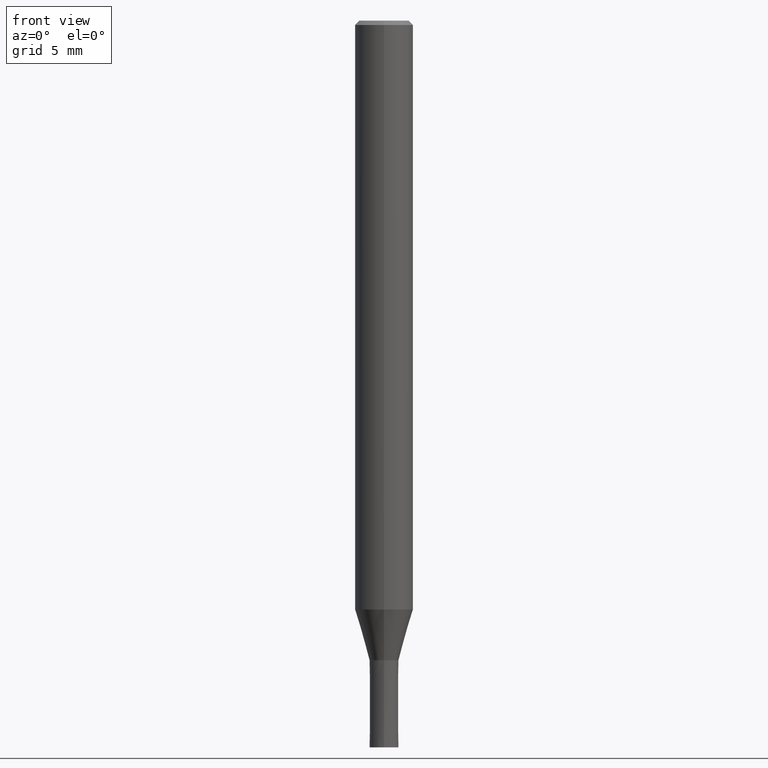
[diagram: clean part render]
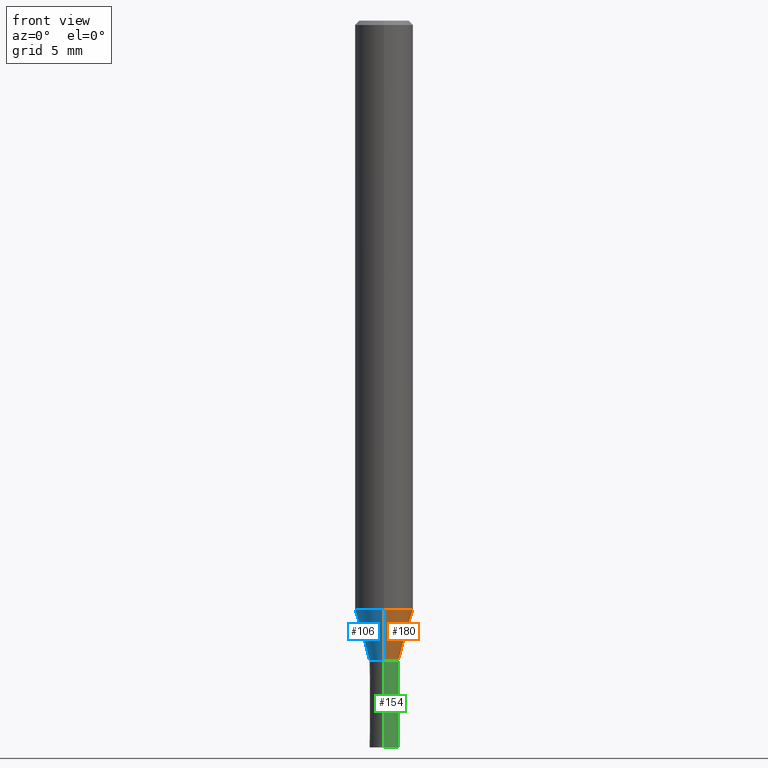
[diagram: same view with three faces highlighted in distinct colors, each labeled with its STEP entity id]
A machine part, front view with three faces highlighted in distinct colors.
Their STEP definitions:

[orange] entity #180 — the highlighted conical surface has half-angle 16.002 deg.
#114=VERTEX_POINT('',#241);
#116=VERTEX_POINT('',#243);
#124=VERTEX_POINT('',#251);
#126=EDGE_CURVE('',#144,#116,#253,.T.);
#138=EDGE_CURVE('',#114,#144,#265,.T.);
#144=VERTEX_POINT('',#271);
#160=EDGE_CURVE('',#116,#124,#290,.T.);
#162=EDGE_CURVE('',#114,#124,#292,.T.);
#180=ADVANCED_FACE('',(#313),#314,.T.);
#241=CARTESIAN_POINT('',(0.0,1.99995,-40.513));
#243=CARTESIAN_POINT('',(1.22454512350469E-016,-0.99995,-44.0));
#251=CARTESIAN_POINT('',(2.44915147732706E-016,-1.99995,-40.513));
#253=CIRCLE('',#392,0.99995);
#265=LINE('',#407,#408);
#271=CARTESIAN_POINT('',(0.0,0.99995,-44.0));
#290=LINE('',#438,#439);
#292=CIRCLE('',#442,1.99995);
#313=FACE_OUTER_BOUND('',#466,.T.);
#314=CONICAL_SURFACE('',#467,1.49995,0.279284171542493);
#392=AXIS2_PLACEMENT_3D('',#536,#537,#538);
#407=CARTESIAN_POINT('',(-1.83684830041587E-016,1.49995,-42.2565));
#408=VECTOR('',#544,1.0);
#438=CARTESIAN_POINT('',(1.83684830041587E-016,-1.49995,-42.2565));
#439=VECTOR('',#576,1.0);
#442=AXIS2_PLACEMENT_3D('',#577,#578,#579);
#466=EDGE_LOOP('',(#610,#611,#612,#613));
#467=AXIS2_PLACEMENT_3D('',#614,#615,#616);
#536=CARTESIAN_POINT('',(0.0,0.0,-44.0));
#537=DIRECTION('',(0.0,0.0,-1.0));
#538=DIRECTION('',(0.0,1.0,0.0));
#544=DIRECTION('',(3.3758432755158E-017,-0.275667626987133,-0.961253015304131));
#576=DIRECTION('',(3.3758432755158E-017,-0.275667626987133,0.961253015304131));
#577=CARTESIAN_POINT('',(0.0,0.0,-40.513));
#578=DIRECTION('',(0.0,0.0,-1.0));
#579=DIRECTION('',(0.0,1.0,0.0));
#610=ORIENTED_EDGE('',*,*,#138,.F.);
#611=ORIENTED_EDGE('',*,*,#162,.T.);
#612=ORIENTED_EDGE('',*,*,#160,.F.);
#613=ORIENTED_EDGE('',*,*,#126,.F.);
#614=CARTESIAN_POINT('',(0.0,0.0,-42.2565));
#615=DIRECTION('',(-0.0,-0.0,1.0));
#616=DIRECTION('',(0.0,1.0,0.0));

[blue] entity #106 — the highlighted conical surface has half-angle 16.002 deg.
#106=ADVANCED_FACE('',(#231),#232,.T.);
#114=VERTEX_POINT('',#241);
#116=VERTEX_POINT('',#243);
#124=VERTEX_POINT('',#251);
#132=EDGE_CURVE('',#124,#114,#259,.T.);
#138=EDGE_CURVE('',#114,#144,#265,.T.);
#144=VERTEX_POINT('',#271);
#152=EDGE_CURVE('',#116,#144,#280,.T.);
#160=EDGE_CURVE('',#116,#124,#290,.T.);
#231=FACE_OUTER_BOUND('',#365,.T.);
#232=CONICAL_SURFACE('',#366,1.49995,0.279284171542493);
#241=CARTESIAN_POINT('',(0.0,1.99995,-40.513));
#243=CARTESIAN_POINT('',(1.22454512350469E-016,-0.99995,-44.0));
#251=CARTESIAN_POINT('',(2.44915147732706E-016,-1.99995,-40.513));
#259=CIRCLE('',#399,1.99995);
#265=LINE('',#407,#408);
#271=CARTESIAN_POINT('',(0.0,0.99995,-44.0));
#280=CIRCLE('',#426,0.99995);
#290=LINE('',#438,#439);
#365=EDGE_LOOP('',(#514,#515,#516,#517));
#366=AXIS2_PLACEMENT_3D('',#518,#519,#520);
#399=AXIS2_PLACEMENT_3D('',#539,#540,#541);
#407=CARTESIAN_POINT('',(-1.83684830041587E-016,1.49995,-42.2565));
#408=VECTOR('',#544,1.0);
#426=AXIS2_PLACEMENT_3D('',#554,#555,#556);
#438=CARTESIAN_POINT('',(1.83684830041587E-016,-1.49995,-42.2565));
#439=VECTOR('',#576,1.0);
#514=ORIENTED_EDGE('',*,*,#138,.T.);
#515=ORIENTED_EDGE('',*,*,#152,.F.);
#516=ORIENTED_EDGE('',*,*,#160,.T.);
#517=ORIENTED_EDGE('',*,*,#132,.T.);
#518=CARTESIAN_POINT('',(0.0,0.0,-42.2565));
#519=DIRECTION('',(-0.0,-0.0,1.0));
#520=DIRECTION('',(0.0,1.0,0.0));
#539=CARTESIAN_POINT('',(0.0,0.0,-40.513));
#540=DIRECTION('',(0.0,0.0,-1.0));
#541=DIRECTION('',(0.0,1.0,0.0));
#544=DIRECTION('',(3.3758432755158E-017,-0.275667626987133,-0.961253015304131));
#554=CARTESIAN_POINT('',(0.0,0.0,-44.0));
#555=DIRECTION('',(0.0,0.0,-1.0));
#556=DIRECTION('',(0.0,1.0,0.0));
#576=DIRECTION('',(3.3758432755158E-017,-0.275667626987133,0.961253015304131));

[green] entity #154 — the highlighted conical surface has half-angle 0.001 deg.
#94=VERTEX_POINT('',#217);
#96=EDGE_CURVE('',#118,#94,#219,.T.);
#104=VERTEX_POINT('',#229);
#118=VERTEX_POINT('',#245);
#154=ADVANCED_FACE('',(#282),#283,.T.);
#158=EDGE_CURVE('',#170,#118,#288,.T.);
#166=EDGE_CURVE('',#104,#94,#296,.T.);
#170=VERTEX_POINT('',#300);
#184=EDGE_CURVE('',#104,#170,#319,.T.);
#217=CARTESIAN_POINT('',(1.224483893187E-016,-0.9999,-44.0));
#219=LINE('',#351,#352);
#229=CARTESIAN_POINT('',(0.0,0.9999,-44.0));
#245=CARTESIAN_POINT('',(1.22460635382238E-016,-1.0,-50.0));
#282=FACE_OUTER_BOUND('',#428,.T.);
#283=CONICAL_SURFACE('',#429,0.99995,1.66666666651216E-005);
#288=CIRCLE('',#435,1.0);
#296=CIRCLE('',#448,0.9999);
#300=CARTESIAN_POINT('',(0.0,1.0,-50.0));
#319=LINE('',#473,#474);
#351=CARTESIAN_POINT('',(1.22454512350469E-016,-0.99995,-47.0));
#352=VECTOR('',#497,1.0);
#428=EDGE_LOOP('',(#558,#559,#560,#561));
#429=AXIS2_PLACEMENT_3D('',#562,#563,#564);
#435=AXIS2_PLACEMENT_3D('',#573,#574,#575);
#448=AXIS2_PLACEMENT_3D('',#583,#584,#585);
#473=CARTESIAN_POINT('',(-1.22454512350469E-016,0.99995,-47.0));
#474=VECTOR('',#623,1.0);
#497=DIRECTION('',(-2.04101058942026E-021,1.666666666435E-005,0.999999999861111));
#558=ORIENTED_EDGE('',*,*,#184,.F.);
#559=ORIENTED_EDGE('',*,*,#166,.T.);
#560=ORIENTED_EDGE('',*,*,#96,.F.);
#561=ORIENTED_EDGE('',*,*,#158,.F.);
#562=CARTESIAN_POINT('',(0.0,0.0,-47.0));
#563=DIRECTION('',(0.0,-0.0,-1.0));
#564=DIRECTION('',(0.0,1.0,0.0));
#573=CARTESIAN_POINT('',(0.0,0.0,-50.0));
#574=DIRECTION('',(0.0,0.0,-1.0));
#575=DIRECTION('',(0.0,1.0,0.0));
#583=CARTESIAN_POINT('',(0.0,0.0,-44.0));
#584=DIRECTION('',(0.0,0.0,-1.0));
#585=DIRECTION('',(0.0,1.0,0.0));
#623=DIRECTION('',(-2.04101058942026E-021,1.666666666435E-005,-0.999999999861111));